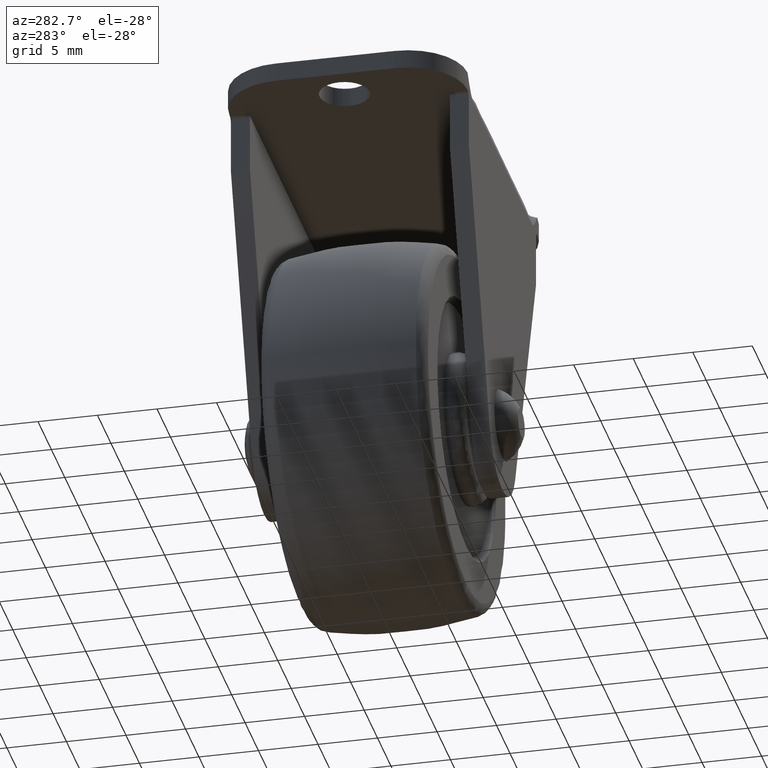
[diagram: clean part render]
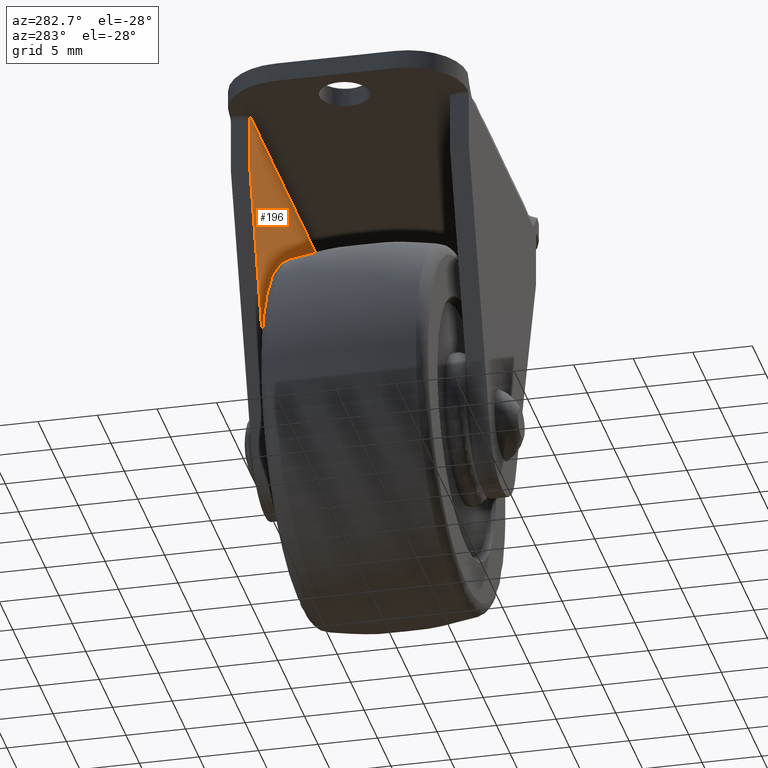
[diagram: same view with one face highlighted and labeled with its STEP entity id]
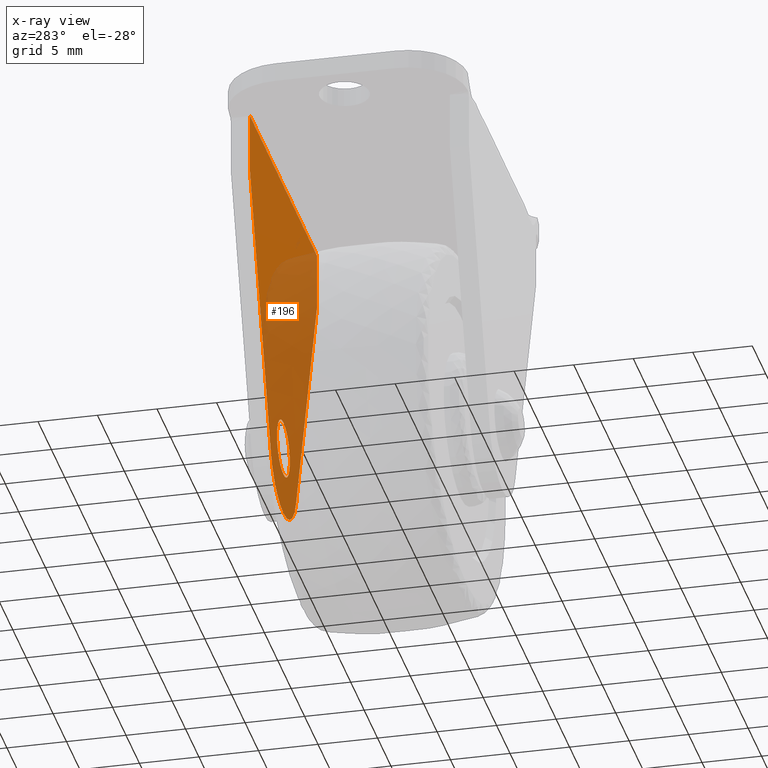
[diagram: x-ray of the same camera — body ghosted, the highlighted face saturated]
A machine part, auxiliary view. The second image highlights one B-rep face of the part: STEP entity #196.
The next image is the same camera in x-ray: the body ghosted, the highlighted face saturated — about 64% of this face is hidden behind the body in this view.
In plain terms, the highlighted planar face has unit normal (0, -1, 0).
Its self-contained STEP definition (entity closure, byte-faithful):
#196=ADVANCED_FACE('',(#720,#721),#719,.T.);
#719=PLANE('',#1630);
#720=FACE_OUTER_BOUND('',#1631,.T.);
#721=FACE_BOUND('',#1632,.T.);
#1627=CARTESIAN_POINT('',(-1.50000022000E+01,8.40000000000E+00,2.74400013629E+01));
#1628=DIRECTION('',(0.00000000000E+00,-1.00000000000E+00,0.00000000000E+00));
#1629=DIRECTION('',(0.00000000000E+00,0.00000000000E+00,-1.00000000000E+00));
#1630=AXIS2_PLACEMENT_3D('',#1627,#1628,#1629);
#1631=EDGE_LOOP('',(#2208,#2209,#2210,#2211,#2212,#2213));
#1632=EDGE_LOOP('',(#2214,#2215));
#2208=ORIENTED_EDGE('',*,*,#2504,.F.);
#2209=ORIENTED_EDGE('',*,*,#2505,.T.);
#2210=ORIENTED_EDGE('',*,*,#2436,.F.);
#2211=ORIENTED_EDGE('',*,*,#2506,.F.);
#2212=ORIENTED_EDGE('',*,*,#2507,.F.);
#2213=ORIENTED_EDGE('',*,*,#2508,.T.);
#2214=ORIENTED_EDGE('',*,*,#2509,.F.);
#2215=ORIENTED_EDGE('',*,*,#2510,.F.);
#2436=EDGE_CURVE('',#3019,#3020,#3021,.T.);
#2504=EDGE_CURVE('',#3477,#3478,#3479,.T.);
#2505=EDGE_CURVE('',#3477,#3020,#3485,.T.);
#2506=EDGE_CURVE('',#3491,#3019,#3492,.T.);
#2507=EDGE_CURVE('',#3498,#3491,#3499,.T.);
#2508=EDGE_CURVE('',#3498,#3478,#3505,.T.);
#2509=EDGE_CURVE('',#3511,#3512,#3513,.T.);
#2510=EDGE_CURVE('',#3512,#3511,#3519,.T.);
#3019=VERTEX_POINT('',#4114);
#3020=VERTEX_POINT('',#4115);
#3021=LINE('',#4116,#4117);
#3477=VERTEX_POINT('',#4410);
#3478=VERTEX_POINT('',#4411);
#3479=LINE('',#4412,#4413);
#3485=LINE('',#4415,#4416);
#3491=VERTEX_POINT('',#4418);
#3492=LINE('',#4419,#4420);
#3498=VERTEX_POINT('',#4422);
#3499=LINE('',#4423,#4424);
#3505=CIRCLE('',#4429,5.00000014763E+00);
#3511=VERTEX_POINT('',#4430);
#3512=VERTEX_POINT('',#4431);
#3513=CIRCLE('',#4435,2.40000000000E+00);
#3519=CIRCLE('',#4439,2.40000000000E+00);
#4114=CARTESIAN_POINT('',(-1.25000000000E+01,8.40000000000E+00,2.44000010000E+01));
#4115=CARTESIAN_POINT('',(1.25000000000E+01,8.40000000000E+00,2.44000010000E+01));
#4116=CARTESIAN_POINT('',(-1.25000000000E+01,8.40000000000E+00,2.44000010000E+01));
#4117=VECTOR('',#4118,2.50000000000E+01);
#4118=DIRECTION('',(1.00000000000E+00,0.00000000000E+00,0.00000000000E+00));
#4410=CARTESIAN_POINT('',(1.25000000000E+01,8.40000000000E+00,1.95000000000E+01));
#4411=CARTESIAN_POINT('',(4.71745700000E+00,8.40000000000E+00,-2.65698600000E+00));
#4412=CARTESIAN_POINT('',(1.24999990620E+01,8.40000000000E+00,1.95000003295E+01));
#4413=VECTOR('',#4414,2.34840372200E+01);
#4414=DIRECTION('',(-3.31397109836E-01,0.00000000000E+00,-9.43491364874E-01));
#4415=CARTESIAN_POINT('',(1.25000000000E+01,8.40000000000E+00,1.95000000000E+01));
#4416=VECTOR('',#4417,4.90000100000E+00);
#4417=DIRECTION('',(0.00000000000E+00,0.00000000000E+00,1.00000000000E+00));
#4418=CARTESIAN_POINT('',(-1.25000020000E+01,8.40000000000E+00,1.95000020000E+01));
#4419=CARTESIAN_POINT('',(-1.25000000000E+01,8.40000000000E+00,1.95000020000E+01));
#4420=VECTOR('',#4421,4.89999900000E+00);
#4421=DIRECTION('',(0.00000000000E+00,0.00000000000E+00,1.00000000000E+00));
#4422=CARTESIAN_POINT('',(-4.71745900000E+00,8.40000000000E+00,-2.65697900000E+00));
#4423=CARTESIAN_POINT('',(-4.71745900000E+00,8.40000000000E+00,-2.65697900000E+00));
#4424=VECTOR('',#4425,2.34840325026E+01);
#4425=DIRECTION('',(-3.31397216349E-01,0.00000000000E+00,9.43491327462E-01));
#4426=CARTESIAN_POINT('',(2.29356695585E-07,8.40000000000E+00,-9.99999852366E-01));
#4427=DIRECTION('',(0.00000000000E+00,-1.00000000000E+00,0.00000000000E+00));
#4428=DIRECTION('',(-0.00000000000E+00,-0.00000000000E+00,1.00000000000E+00));
#4429=AXIS2_PLACEMENT_3D('',#4426,#4427,#4428);
#4430=CARTESIAN_POINT('',(1.48029736617E-16,8.40000000000E+00,2.40000000000E+00));
#4431=CARTESIAN_POINT('',(0.00000000000E+00,8.40000000000E+00,-2.40000000000E+00));
#4432=CARTESIAN_POINT('',(0.00000000000E+00,8.40000000000E+00,0.00000000000E+00));
#4433=DIRECTION('',(0.00000000000E+00,-1.00000000000E+00,-0.00000000000E+00));
#4434=DIRECTION('',(-1.22460635382E-16,0.00000000000E+00,-1.00000000000E+00));
#4435=AXIS2_PLACEMENT_3D('',#4432,#4433,#4434);
#4436=CARTESIAN_POINT('',(0.00000000000E+00,8.40000000000E+00,0.00000000000E+00));
#4437=DIRECTION('',(0.00000000000E+00,-1.00000000000E+00,-0.00000000000E+00));
#4438=DIRECTION('',(-1.22460635382E-16,0.00000000000E+00,-1.00000000000E+00));
#4439=AXIS2_PLACEMENT_3D('',#4436,#4437,#4438);